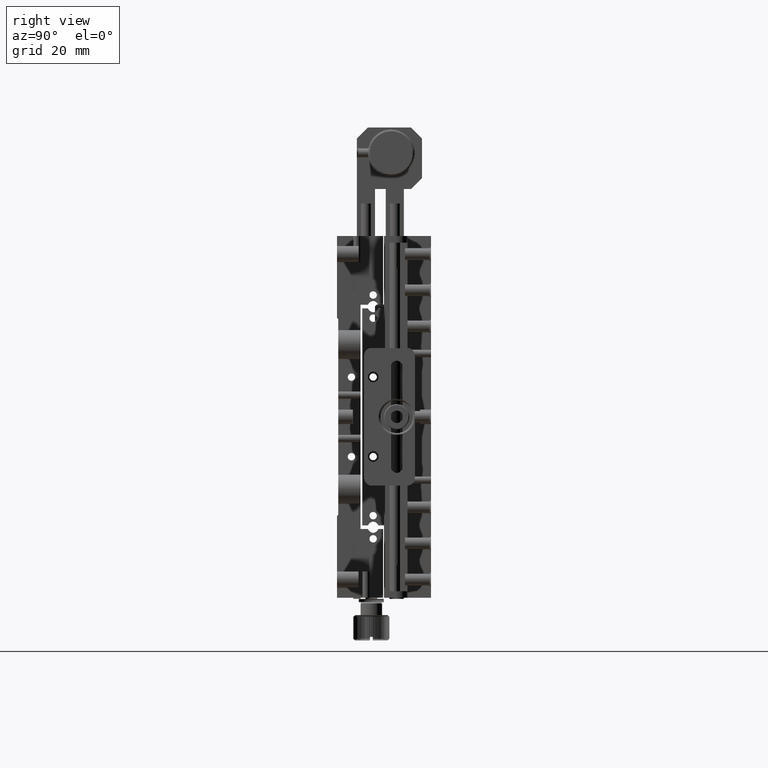
[diagram: clean part render]
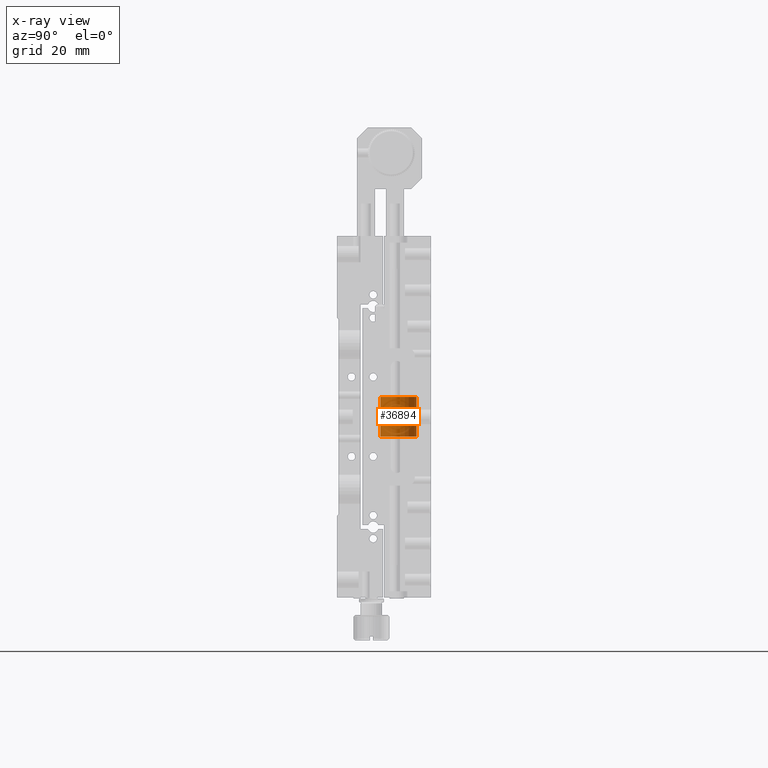
[diagram: x-ray — body ghosted, one internal face saturated and labeled with its STEP entity id]
A machine part, right view, then the same camera in x-ray: the body is ghosted and one INTERNAL B-rep face — a face not visible from any outside direction — is saturated and labeled: STEP entity #36894.
In plain terms, the highlighted cylindrical surface (bore or boss wall) has radius 5 mm, axis along (0, 0, 1).
Its self-contained STEP definition (entity closure, byte-faithful):
#437 = CARTESIAN_POINT ( 'NONE',  ( -78.60144570997006497, 4.611784340263723081, 0.3285101574009817726 ) ) ;
#450 = CIRCLE ( 'NONE', #35010, 4.999999999999990230 ) ;
#681 = CARTESIAN_POINT ( 'NONE',  ( -76.44292277512566613, 4.550884721305348712, 0.8264171795759007733 ) ) ;
#1182 = CARTESIAN_POINT ( 'NONE',  ( -77.46506134790914189, 4.461795339572326213, -1.250074011667966722 ) ) ;
#1407 = EDGE_LOOP ( 'NONE', ( #6811 ) ) ;
#2407 = CARTESIAN_POINT ( 'NONE',  ( -78.60117585943635277, 4.611717920361247280, -0.3293153170337495550 ) ) ;
#3668 = DIRECTION ( 'NONE',  ( 1.406214008477004513E-18, 1.804112415015879871E-16, 1.000000000000000000 ) ) ;
#4140 = CARTESIAN_POINT ( 'NONE',  ( -77.38432492328678336, 9.461813842482099446, 5.500000000000004441 ) ) ;
#4143 = CARTESIAN_POINT ( 'NONE',  ( -78.01457504734383974, 4.499398616965639697, 1.091677131774037468 ) ) ;
#4385 = FACE_OUTER_BOUND ( 'NONE', #44493, .T. ) ;
#4622 = CARTESIAN_POINT ( 'NONE',  ( -78.38300754906701684, 4.561178013095911865, 0.7690783292002590921 ) ) ;
#4863 = AXIS2_PLACEMENT_3D ( 'NONE', #4140, #3668, #19139 ) ;
#4873 = CARTESIAN_POINT ( 'NONE',  ( -77.21943847807786199, 4.461851236722922387, -1.249850422978754150 ) ) ;
#5491 = CARTESIAN_POINT ( 'NONE',  ( -77.38432492328678336, 4.461813842482108328, 5.500000000000005329 ) ) ;
#6101 = CARTESIAN_POINT ( 'NONE',  ( -78.63432492328678336, 4.620584659722837273, 2.886688284242655556E-15 ) ) ;
#6811 = ORIENTED_EDGE ( 'NONE', *, *, #47571, .T. ) ;
#7825 = CARTESIAN_POINT ( 'NONE',  ( -78.63432492328679757, 4.620584659722837273, 0.1658404504060725926 ) ) ;
#9050 = CARTESIAN_POINT ( 'NONE',  ( -78.37724680826634938, 4.561176382189501943, -0.7636832227693901576 ) ) ;
#11528 = FACE_BOUND ( 'NONE', #1407, .T. ) ;
#11758 = CYLINDRICAL_SURFACE ( 'NONE', #4863, 4.999999999999990230 ) ;
#11760 = CARTESIAN_POINT ( 'NONE',  ( -76.75412054869471490, 4.499346255329120581, 1.091936259863101055 ) ) ;
#12255 = CARTESIAN_POINT ( 'NONE',  ( -77.05453348024457227, 4.470419379349076294, -1.216640106791626375 ) ) ;
#12381 = VERTEX_POINT ( 'NONE', #5491 ) ;
#13227 = CARTESIAN_POINT ( 'NONE',  ( -78.50707922923473348, 4.589395353464493787, -0.5555100927846385872 ) ) ;
#15449 = CARTESIAN_POINT ( 'NONE',  ( -77.54920709807198875, 4.461851235729213272, 1.249850426953601046 ) ) ;
#15684 = CARTESIAN_POINT ( 'NONE',  ( -76.30088709611844422, 4.580389470233445337, 0.6287034618220667115 ) ) ;
#15685 = CIRCLE ( 'NONE', #43162, 4.999999999999990230 ) ;
#15933 = CARTESIAN_POINT ( 'NONE',  ( -76.39142120530884483, 4.561172697269782361, 0.7637066027420299497 ) ) ;
#16115 = EDGE_CURVE ( 'NONE', #12381, #12381, #15685, .T. ) ;
#16179 = CARTESIAN_POINT ( 'NONE',  ( -77.22039920656516188, 4.463855346468017515, 1.241905586534314487 ) ) ;
#16663 = CARTESIAN_POINT ( 'NONE',  ( -77.78690836102964568, 4.477464599840144999, -1.186243032005223297 ) ) ;
#19040 = DIRECTION ( 'NONE',  ( 1.406214008477004513E-18, 1.804112415015879871E-16, 1.000000000000000000 ) ) ;
#19139 = DIRECTION ( 'NONE',  ( 0.000000000000000000, -1.000000000000000000, 1.734723475976810546E-16 ) ) ;
#19141 = CARTESIAN_POINT ( 'NONE',  ( -77.71410785412128064, 4.470418916427691514, 1.216641852577210914 ) ) ;
#19374 = CARTESIAN_POINT ( 'NONE',  ( -78.15345543414329654, 4.519948124297459735, 0.9986424388891146364 ) ) ;
#19615 = CARTESIAN_POINT ( 'NONE',  ( -76.29283662638479768, 4.581975513504540132, -0.6308381934878858344 ) ) ;
#23048 = CARTESIAN_POINT ( 'NONE',  ( -76.98175160978895804, 4.477463809219585755, 1.186246312786293222 ) ) ;
#23903 = ORIENTED_EDGE ( 'NONE', *, *, #16115, .F. ) ;
#24026 = CARTESIAN_POINT ( 'NONE',  ( -78.63432492328678336, 4.620584659722838161, -0.1658404504060488893 ) ) ;
#24259 = CARTESIAN_POINT ( 'NONE',  ( -78.32574535213335309, 4.550888223276925437, -0.8263965430933344347 ) ) ;
#24742 = CARTESIAN_POINT ( 'NONE',  ( -77.70882484904473131, 4.471707542436621274, -1.209917876743267451 ) ) ;
#26480 = CARTESIAN_POINT ( 'NONE',  ( -78.63432492328678336, 4.620584659722837273, 2.886688284242655556E-15 ) ) ;
#26723 = CARTESIAN_POINT ( 'NONE',  ( -76.61668267002632149, 4.519691148522918311, 1.000019403837346443 ) ) ;
#26867 = EDGE_CURVE ( 'NONE', #42504, #42504, #450, .T. ) ;
#27220 = CARTESIAN_POINT ( 'NONE',  ( -76.13433180937498435, 4.620582881741166936, 0.1658961709712097055 ) ) ;
#27367 = EDGE_LOOP ( 'NONE', ( #40346 ) ) ;
#27460 = CARTESIAN_POINT ( 'NONE',  ( -78.47579569982868009, 4.581971557559334052, 0.6308672418562049078 ) ) ;
#27609 = B_SPLINE_CURVE_WITH_KNOTS ( 'NONE', 3,
 ( #26480, #7825, #437, #27460, #4622, #19374, #4143, #19141, #15449, #30409, #16179, #45415, #23048, #11760, #26723, #681, #15933, #15684, #34839, #31166, #27220, #30647, #45910, #19615, #38514, #45651, #34586, #12255, #4873, #1182, #46151, #24742, #16663, #39750, #43689, #24259, #9050, #28207, #13227, #2407, #24026, #6101 ),
 .UNSPECIFIED., .T., .F.,
 ( 4, 2, 2, 2, 2, 2, 2, 2, 2, 2, 2, 2, 2, 2, 2, 2, 2, 2, 2, 2, 4 ),
 ( 0.000000000000000000, 0.0004903003259706729174, 0.0009806006519413458349, 0.001470900977912018752, 0.001961201303882691670, 0.002206351466868007420, 0.002451501629853322303, 0.002941801955823953804, 0.003186952118809284300, 0.003432102281794614362, 0.003922402607765274919, 0.004412702933735935910, 0.004903003259706596034, 0.005393303585677257025, 0.005883603911647918017, 0.006128754074633226828, 0.006373904237618537374, 0.006864204563589155865, 0.007109354726574465544, 0.007354504889559774355, 0.007844805215530393713 ),
 .UNSPECIFIED. ) ;
#28207 = CARTESIAN_POINT ( 'NONE',  ( -78.46777999329565034, 4.580393301474956935, -0.6286740377038494421 ) ) ;
#28256 = CARTESIAN_POINT ( 'NONE',  ( -77.38432492328678336, 4.461813842482106551, -5.499999999999998224 ) ) ;
#30409 = CARTESIAN_POINT ( 'NONE',  ( -77.30359063287428967, 4.461795340068953841, 1.250074009681463094 ) ) ;
#30647 = CARTESIAN_POINT ( 'NONE',  ( -76.13431803935290532, 4.620586437145576042, -0.1657923836843734344 ) ) ;
#31166 = CARTESIAN_POINT ( 'NONE',  ( -76.16748557632384120, 4.611714970557244442, 0.3293562122035186834 ) ) ;
#32777 = CARTESIAN_POINT ( 'NONE',  ( -77.38432492328678336, 9.461813842482097670, -5.499999999999999112 ) ) ;
#33763 = CARTESIAN_POINT ( 'NONE',  ( -77.38432492328678336, 9.461813842482099446, 5.500000000000004441 ) ) ;
#34006 = DIRECTION ( 'NONE',  ( 0.000000000000000000, -1.000000000000000000, 1.734723475976810546E-16 ) ) ;
#34586 = CARTESIAN_POINT ( 'NONE',  ( -76.75405980550827678, 4.499400421190953736, -1.091669101270814624 ) ) ;
#34839 = CARTESIAN_POINT ( 'NONE',  ( -76.26158690541902274, 4.589391589723699205, 0.5555427264782561991 ) ) ;
#35010 = AXIS2_PLACEMENT_3D ( 'NONE', #32777, #36212, #36457 ) ;
#36212 = DIRECTION ( 'NONE',  ( -1.406214008477004513E-18, -1.804112415015879871E-16, -1.000000000000000000 ) ) ;
#36457 = DIRECTION ( 'NONE',  ( 0.000000000000000000, -1.000000000000000000, 1.734723475976810546E-16 ) ) ;
#36894 = ADVANCED_FACE ( 'NONE', ( #37316, #4385, #11528 ), #11758, .T. ) ;
#37316 = FACE_OUTER_BOUND ( 'NONE', #27367, .T. ) ;
#38514 = CARTESIAN_POINT ( 'NONE',  ( -76.38562358251920159, 4.561181806861162258, -0.7690549486019780945 ) ) ;
#39502 = VERTEX_POINT ( 'NONE', #46379 ) ;
#39750 = CARTESIAN_POINT ( 'NONE',  ( -78.01454466143255218, 4.499348097559220605, -1.091928066749254134 ) ) ;
#40346 = ORIENTED_EDGE ( 'NONE', *, *, #26867, .F. ) ;
#42504 = VERTEX_POINT ( 'NONE', #28256 ) ;
#43162 = AXIS2_PLACEMENT_3D ( 'NONE', #33763, #19040, #34006 ) ;
#43689 = CARTESIAN_POINT ( 'NONE',  ( -78.15198498423751516, 4.519693905078426610, -1.000006355962807181 ) ) ;
#44493 = EDGE_LOOP ( 'NONE', ( #23903 ) ) ;
#45415 = CARTESIAN_POINT ( 'NONE',  ( -77.05983325476617551, 4.471707037458505063, 1.209919949223323021 ) ) ;
#45651 = CARTESIAN_POINT ( 'NONE',  ( -76.61517721231743394, 4.519950781316224742, -0.9986299017808084599 ) ) ;
#45910 = CARTESIAN_POINT ( 'NONE',  ( -76.16719216968004957, 4.611787380767669475, -0.3284682461590369695 ) ) ;
#46151 = CARTESIAN_POINT ( 'NONE',  ( -77.54825494210291481, 4.463855455650389104, -1.241905157091634182 ) ) ;
#46379 = CARTESIAN_POINT ( 'NONE',  ( -78.63432492328678336, 4.620584659722837273, 2.713177269199446342E-15 ) ) ;
#47571 = EDGE_CURVE ( 'NONE', #39502, #39502, #27609, .T. ) ;